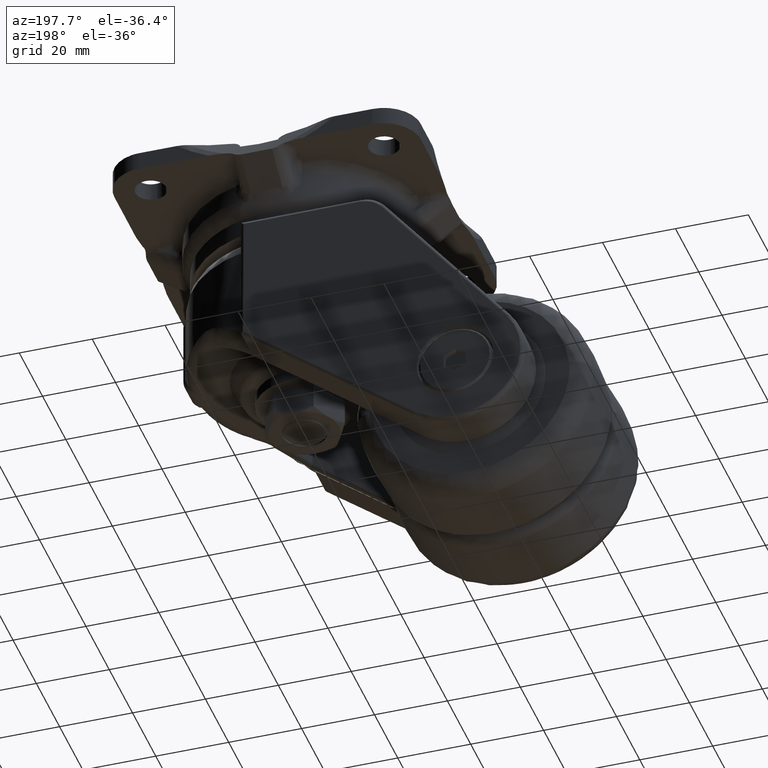
[diagram: clean part render]
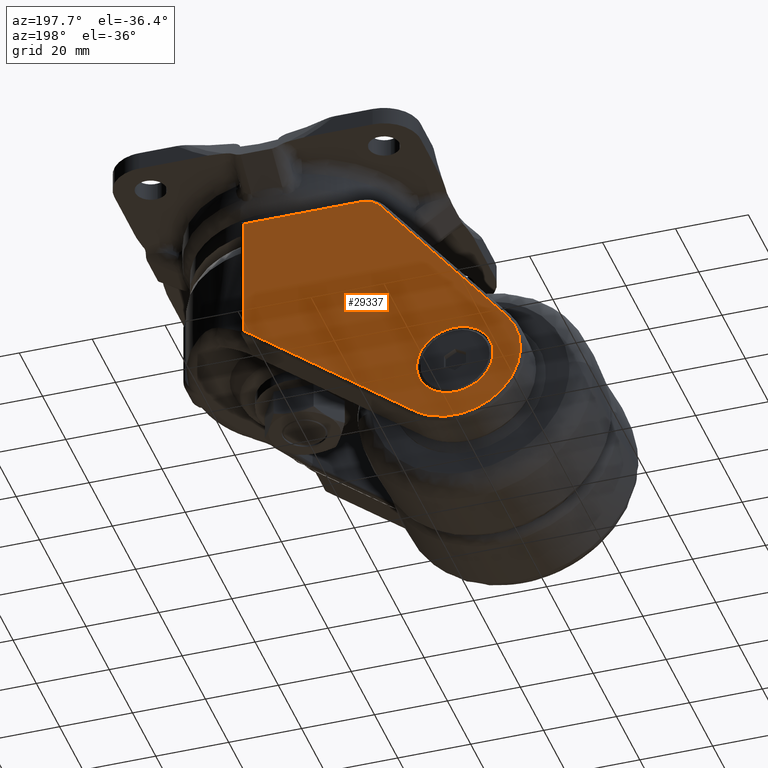
[diagram: same view with one face highlighted and labeled with its STEP entity id]
A machine part, auxiliary view. The second image highlights one B-rep face of the part: STEP entity #29337.
In plain terms, the highlighted face is a freeform B-spline surface patch.
Its self-contained STEP definition (entity closure, byte-faithful):
#22985=CARTESIAN_POINT('',(-63.467632004192943,36.950000000000003,-63.676179494795342));
#22986=VERTEX_POINT('',#22985);
#22992=CARTESIAN_POINT('',(-53.0,36.950000000000003,-54.0));
#22993=VERTEX_POINT('',#22992);
#22994=CARTESIAN_POINT('',(-53.0,36.950000000000003,-54.0));
#22995=CARTESIAN_POINT('',(-62.706100162295286,36.949999999999996,-53.999999999999993));
#22996=CARTESIAN_POINT('',(-63.467632004192943,36.950000000000003,-63.676179494795335));
#23004=(BOUNDED_CURVE()B_SPLINE_CURVE(2,(#22994,#22995,#22996),.UNSPECIFIED.,.F.,.U.)B_SPLINE_CURVE_WITH_KNOTS((3,3),(0.0,0.236331300630727),.UNSPECIFIED.)CURVE()GEOMETRIC_REPRESENTATION_ITEM()RATIONAL_B_SPLINE_CURVE((1.0,0.723120658607587,0.969723356167557))REPRESENTATION_ITEM(''));
#23005=EDGE_CURVE('',#22993,#22986,#23004,.T.);
#23007=CARTESIAN_POINT('',(-42.532367995807057,36.949999999999989,-65.323820505204679));
#23008=VERTEX_POINT('',#23007);
#23009=CARTESIAN_POINT('',(-42.532367995807057,36.949999999999989,-65.323820505204679));
#23010=CARTESIAN_POINT('',(-42.499999999999993,36.950000000000003,-64.912546123643125));
#23011=CARTESIAN_POINT('',(-42.499999999999993,36.950000000000003,-64.500000000000000));
#23012=CARTESIAN_POINT('',(-42.499999999999993,36.950000000000003,-54.0));
#23013=CARTESIAN_POINT('',(-53.0,36.950000000000003,-54.0));
#23021=(BOUNDED_CURVE()B_SPLINE_CURVE(2,(#23009,#23010,#23011,#23012,#23013),.UNSPECIFIED.,.F.,.U.)B_SPLINE_CURVE_WITH_KNOTS((3,2,3),(0.736331300630726,0.750000000000000,1.0),.UNSPECIFIED.)CURVE()GEOMETRIC_REPRESENTATION_ITEM()RATIONAL_B_SPLINE_CURVE((0.969723356167557,0.983986122578960,1.0,0.707106781186547,1.0))REPRESENTATION_ITEM(''));
#23022=EDGE_CURVE('',#23008,#22993,#23021,.T.);
#23098=CARTESIAN_POINT('',(-53.0,36.950000000000003,-75.0));
#23099=VERTEX_POINT('',#23098);
#23100=CARTESIAN_POINT('',(-53.0,36.950000000000003,-75.0));
#23101=CARTESIAN_POINT('',(-43.293899837704764,36.950000000000003,-75.0));
#23102=CARTESIAN_POINT('',(-42.532367995807071,36.949999999999989,-65.323820505204679));
#23110=(BOUNDED_CURVE()B_SPLINE_CURVE(2,(#23100,#23101,#23102),.UNSPECIFIED.,.F.,.U.)B_SPLINE_CURVE_WITH_KNOTS((3,3),(0.500000000000000,0.736331300630725),.UNSPECIFIED.)CURVE()GEOMETRIC_REPRESENTATION_ITEM()RATIONAL_B_SPLINE_CURVE((1.0,0.723120658607588,0.969723356167555))REPRESENTATION_ITEM(''));
#23111=EDGE_CURVE('',#23099,#23008,#23110,.T.);
#23113=CARTESIAN_POINT('',(-63.467632004192936,36.949999999999996,-63.676179494795335));
#23114=CARTESIAN_POINT('',(-63.500000000000007,36.949999999999996,-64.087453876356875));
#23115=CARTESIAN_POINT('',(-63.500000000000000,36.950000000000003,-64.500000000000000));
#23116=CARTESIAN_POINT('',(-63.499999999999993,36.950000000000003,-75.0));
#23117=CARTESIAN_POINT('',(-53.0,36.950000000000003,-75.0));
#23125=(BOUNDED_CURVE()B_SPLINE_CURVE(2,(#23113,#23114,#23115,#23116,#23117),.UNSPECIFIED.,.F.,.U.)B_SPLINE_CURVE_WITH_KNOTS((3,2,3),(0.236331300630727,0.250000000000000,0.500000000000000),.UNSPECIFIED.)CURVE()GEOMETRIC_REPRESENTATION_ITEM()RATIONAL_B_SPLINE_CURVE((0.969723356167557,0.983986122578960,1.0,0.707106781186547,1.0))REPRESENTATION_ITEM(''));
#23126=EDGE_CURVE('',#22986,#23099,#23125,.T.);
#26333=CARTESIAN_POINT('',(5.0,36.950000000000003,-42.112987877898249));
#26334=VERTEX_POINT('',#26333);
#26486=CARTESIAN_POINT('',(-27.150564000000099,36.950000000000003,-7.499999999999890));
#26487=VERTEX_POINT('',#26486);
#26503=CARTESIAN_POINT('',(-32.620583532473603,36.950000000000003,-10.132061548698481));
#26504=VERTEX_POINT('',#26503);
#26505=CARTESIAN_POINT('',(-27.150564000000099,36.950000000000003,-7.499999999999890));
#26506=CARTESIAN_POINT('',(-30.518820864808390,36.950000000000003,-7.500000000000001));
#26507=CARTESIAN_POINT('',(-32.620583532473603,36.950000000000003,-10.132061548698481));
#26515=(BOUNDED_CURVE()B_SPLINE_CURVE(2,(#26505,#26506,#26507),.UNSPECIFIED.,.F.,.U.)CURVE()GEOMETRIC_REPRESENTATION_ITEM()QUASI_UNIFORM_CURVE()RATIONAL_B_SPLINE_CURVE((1.0,0.901107986683280,1.0))REPRESENTATION_ITEM(''));
#26516=EDGE_CURVE('',#26487,#26504,#26515,.T.);
#26567=CARTESIAN_POINT('',(-67.065764512074708,36.950000000000003,-53.268158268081798));
#26568=VERTEX_POINT('',#26567);
#26588=CARTESIAN_POINT('',(-32.620583532473603,36.950000000000003,-10.132061548698481));
#26589=CARTESIAN_POINT('',(-67.065764512074708,36.950000000000003,-53.268158268081798));
#26590=QUASI_UNIFORM_CURVE('',1,(#26588,#26589),.UNSPECIFIED.,.F.,.U.);
#26591=EDGE_CURVE('',#26504,#26568,#26590,.T.);
#26616=CARTESIAN_POINT('',(5.0,36.950000000000003,-7.499999999999890));
#26617=VERTEX_POINT('',#26616);
#26631=CARTESIAN_POINT('',(5.0,36.950000000000003,-7.499999999999890));
#26632=CARTESIAN_POINT('',(-27.150564000000099,36.950000000000003,-7.499999999999890));
#26633=QUASI_UNIFORM_CURVE('',1,(#26631,#26632),.UNSPECIFIED.,.F.,.U.);
#26634=EDGE_CURVE('',#26617,#26487,#26633,.T.);
#26665=CARTESIAN_POINT('',(-41.934112114154850,36.950000000000003,-78.696694167935917));
#26666=VERTEX_POINT('',#26665);
#26698=CARTESIAN_POINT('',(-67.065764512074722,36.950000000000003,-53.268158268081791));
#26699=CARTESIAN_POINT('',(-77.050443980785474,36.950000000000010,-65.772087141681368));
#26700=CARTESIAN_POINT('',(-65.802438222686021,36.950000000000003,-77.152967065250266));
#26701=CARTESIAN_POINT('',(-54.554432464586569,36.950000000000010,-88.533846988819136));
#26702=CARTESIAN_POINT('',(-41.934112114154857,36.950000000000003,-78.696694167935931));
#26710=(BOUNDED_CURVE()B_SPLINE_CURVE(2,(#26698,#26699,#26700,#26701,#26702),.UNSPECIFIED.,.F.,.U.)B_SPLINE_CURVE_WITH_KNOTS((3,2,3),(0.0,0.500000000000000,1.0),.UNSPECIFIED.)CURVE()GEOMETRIC_REPRESENTATION_ITEM()RATIONAL_B_SPLINE_CURVE((1.0,0.747382219244567,1.0,0.747382219244567,1.0))REPRESENTATION_ITEM(''));
#26711=EDGE_CURVE('',#26568,#26666,#26710,.T.);
#26738=CARTESIAN_POINT('',(5.0,36.950000000000003,-42.112987877898249));
#26739=CARTESIAN_POINT('',(5.0,36.950000000000003,-7.499999999999890));
#26740=QUASI_UNIFORM_CURVE('',1,(#26738,#26739),.UNSPECIFIED.,.F.,.U.);
#26741=EDGE_CURVE('',#26334,#26617,#26740,.T.);
#26766=CARTESIAN_POINT('',(-41.934112114154850,36.950000000000003,-78.696694167935917));
#26767=CARTESIAN_POINT('',(5.0,36.950000000000003,-42.112987877898249));
#26768=QUASI_UNIFORM_CURVE('',1,(#26766,#26767),.UNSPECIFIED.,.F.,.U.);
#26769=EDGE_CURVE('',#26666,#26334,#26768,.T.);
#29318=CARTESIAN_POINT('',(-74.796016003356101,36.950000000000003,-3.753867342632497));
#29319=CARTESIAN_POINT('',(8.796193144156263,36.950000000000003,-3.753867342632497));
#29320=CARTESIAN_POINT('',(-74.796016003356101,36.950000000000003,-86.243788374908320));
#29321=CARTESIAN_POINT('',(8.796193144156263,36.950000000000003,-86.243788374908320));
#29322=B_SPLINE_SURFACE_WITH_KNOTS('',1,1,((#29318,#29320),(#29319,#29321)),.UNSPECIFIED.,.F.,.F.,.U.,(2,2),(2,2),(0.0,83.592209147512364),(0.0,82.489921032275817),.UNSPECIFIED.);
#29323=ORIENTED_EDGE('',*,*,#26634,.F.);
#29324=ORIENTED_EDGE('',*,*,#26741,.F.);
#29325=ORIENTED_EDGE('',*,*,#26769,.F.);
#29326=ORIENTED_EDGE('',*,*,#26711,.F.);
#29327=ORIENTED_EDGE('',*,*,#26591,.F.);
#29328=ORIENTED_EDGE('',*,*,#26516,.F.);
#29329=EDGE_LOOP('',(#29323,#29324,#29325,#29326,#29327,#29328));
#29330=FACE_OUTER_BOUND('',#29329,.T.);
#29331=ORIENTED_EDGE('',*,*,#23111,.T.);
#29332=ORIENTED_EDGE('',*,*,#23022,.T.);
#29333=ORIENTED_EDGE('',*,*,#23005,.T.);
#29334=ORIENTED_EDGE('',*,*,#23126,.T.);
#29335=EDGE_LOOP('',(#29331,#29332,#29333,#29334));
#29336=FACE_BOUND('',#29335,.T.);
#29337=ADVANCED_FACE('',(#29330,#29336),#29322,.T.);